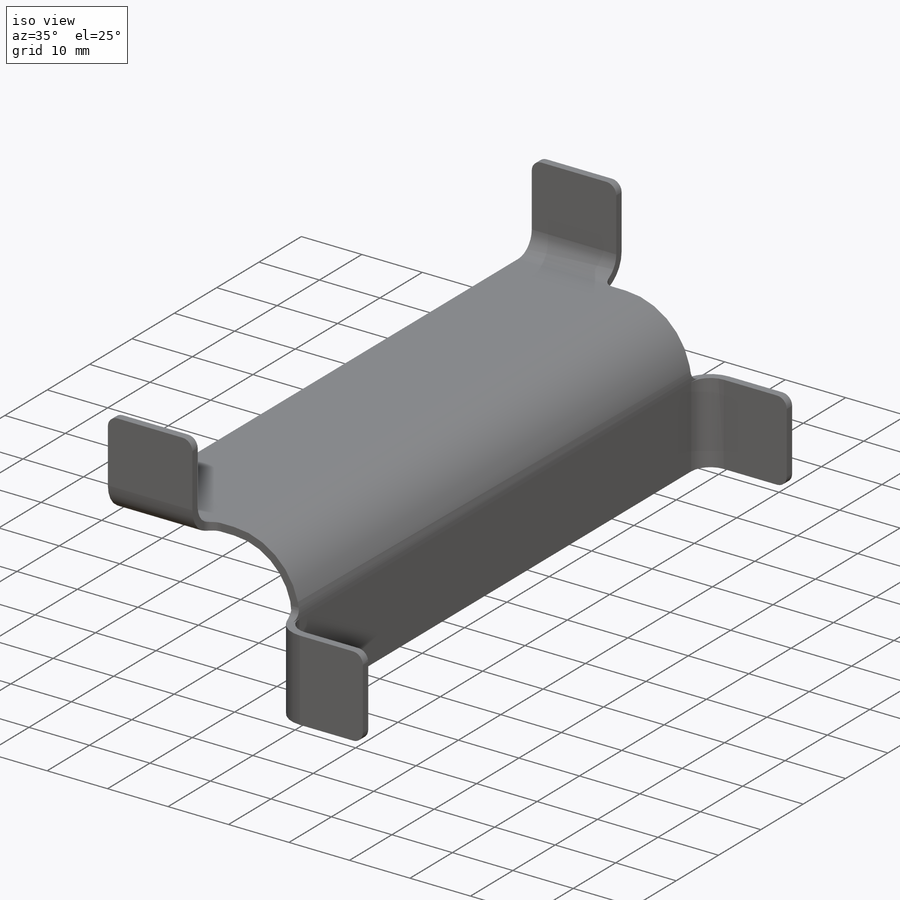
[diagram: iso view]
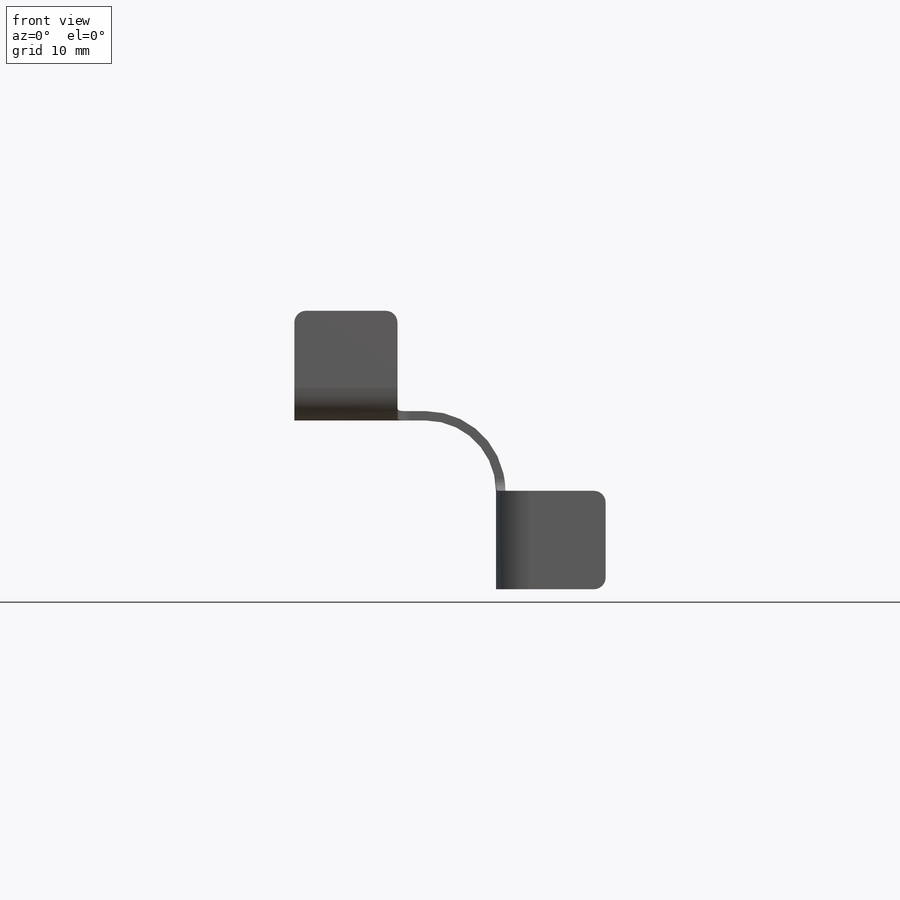
[diagram: front view]
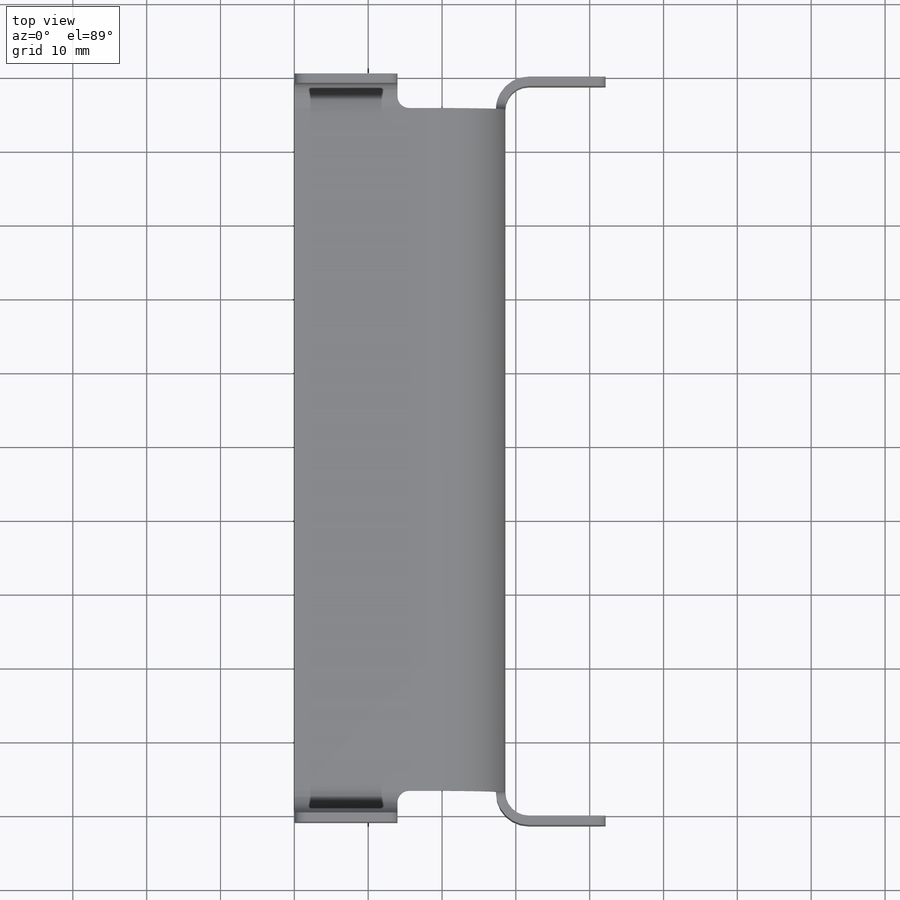
[diagram: top view]
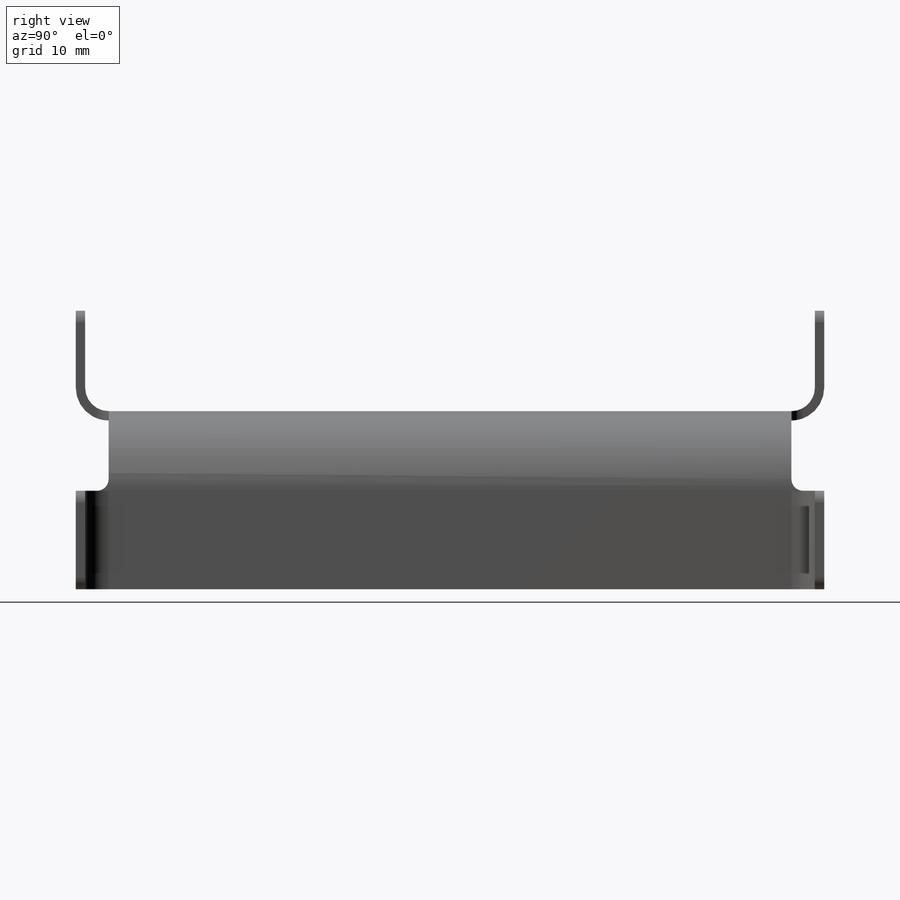
[diagram: right view]
SOLIDWORKS PART (.sldprt)
format: sldprt  version: not decoded by parser v0  size: 385,536 bytes
history: native  units: mm
features: sketch x8, cut_extrude x2, material x1, extrude x1, sheet_metal_op x1, fillet x1 + 5 further entries (+16 scaffold rows collapsed)
feature tree (35):
  scaffold x16  (default folders/planes/origin — collapsed)
  material  "Material <not specified>"
  sketch  "Sketch1"  dims[c1.D1=~38.650024mm c2.D1=28.575mm c2.D2=24.13mm]
  extrude  "Extrude1"  Depth=101.3714mm
  sheet_metal_op  "Sheet-Metal1"  Thickness=1.27mm
  sketch  "Sketch5"  dims[c1.EdgeBend1=0.0 c1.D1=3.175mm c1.D4=90.0deg c1.D5=2.0 c1.D8=0.635mm c1.D9=0.635mm c2.D1=3.175mm c2.D2=500.0mm c2.D3=0.0mm c2.D6=10.0mm c2.D7=13.589mm]
  sketch  "Sketch8"  dims[c1.EdgeBend2=0.0 c1.D1=3.175mm c1.D4=90.0deg c1.D5=3.0 c1.D8=0.635mm c1.D9=0.635mm c2.D1=3.175mm c2.D2=500.0mm c2.D3=0.0mm c2.D6=10.0mm c2.D7=13.589mm]
  sketch  "Sketch11"  dims[c1.D1=13.97mm c1.EdgeBend3=0.0 c2.D1=3.175mm c2.D4=90.0deg c2.D5=4.0 c2.D8=0.0mm c2.D9=0.0mm c3.D1=3.175mm c3.D2=500.0mm c3.D3=0.0mm c3.D6=10.0mm c3.D7=13.589mm]
  sketch  "Sketch14"  dims[c1.D1=13.97mm c1.EdgeBend4=0.0 c2.D1=3.175mm c2.D4=90.0deg c2.D5=5.0 c2.D8=0.0mm c2.D9=0.0mm c3.D1=3.175mm c3.D2=500.0mm c3.D3=0.0mm c3.D6=10.0mm c3.D7=13.589mm]
  sketch  "Sketch16"
  cut_extrude  "Extrude8"  [1 undecoded]
  sketch  "Sketch17"
  cut_extrude  "Extrude9"  [1 undecoded]
  fillet  "Fillet1"  Radius=1.5875mm
  "Flat-Pattern1"
  sketch  "Bend-Lines1"
  "Flatten-<EdgeBend1>1"
  "Flatten-<EdgeBend2>1"
  "Flatten-<EdgeBend3>1"
  "Flatten-<EdgeBend4>1"
decode coverage: 8 of 13 modeling features carry decoded parameters; 5 rows unclassified (native names shown)
note: ~ marks probable driven/reference dimensions
note: 2 parameter values undecoded
note: suppression state not decoded; provenance and decode notes live in map.json
